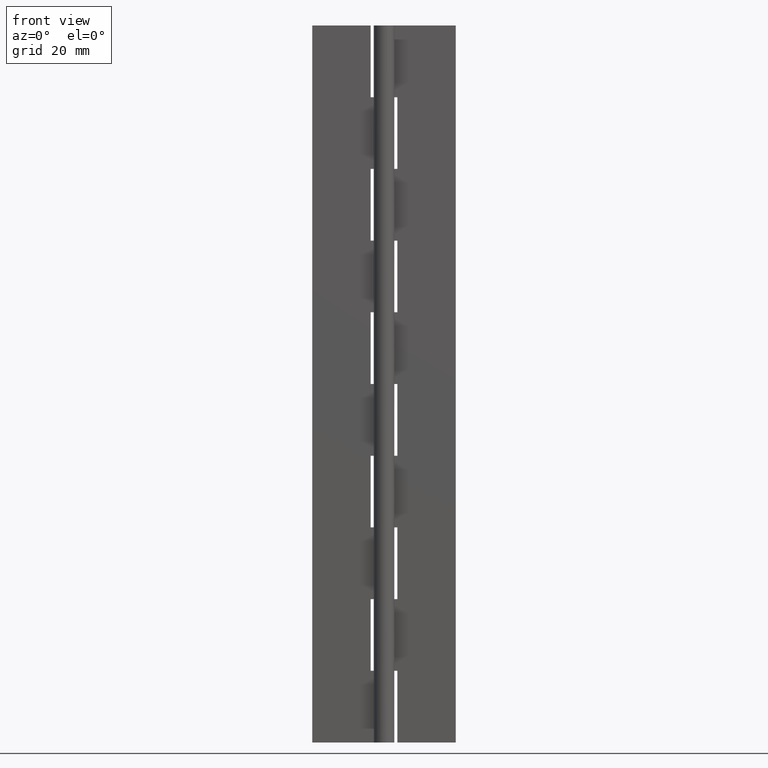
[diagram: clean part render]
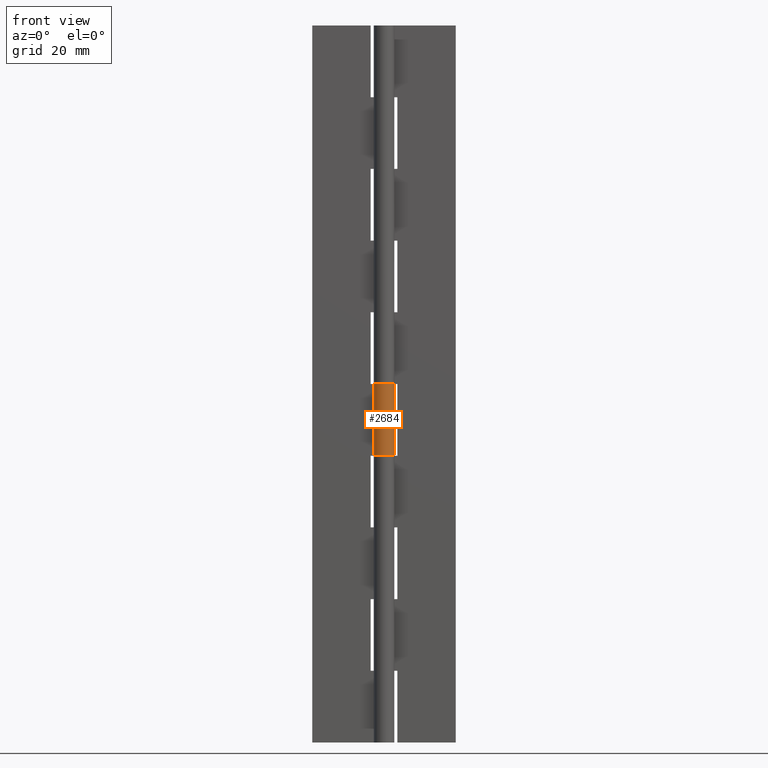
[diagram: same view with one face highlighted and labeled with its STEP entity id]
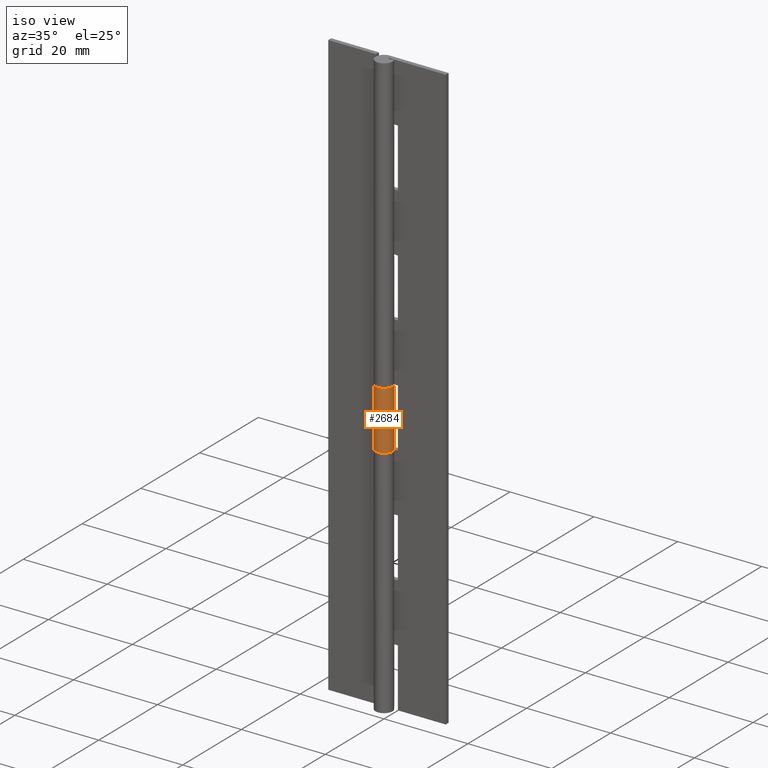
[diagram: same view with one face highlighted and labeled with its STEP entity id]
A machine part, front view. The second image highlights one B-rep face of the part: STEP entity #2684.
A second angle (iso view) of the same face is appended — the face is thin or edge-on in the first view.
In plain terms, the highlighted face is a freeform B-spline surface patch.
Its self-contained STEP definition (entity closure, byte-faithful):
#1878=CARTESIAN_POINT('',(0.0,2.0,70.0));
#1879=VERTEX_POINT('',#1878);
#1920=CARTESIAN_POINT('',(-1.759971590679805,0.950000000000000,70.0));
#1921=VERTEX_POINT('',#1920);
#1927=CARTESIAN_POINT('',(0.0,2.0,70.0));
#1928=CARTESIAN_POINT('',(1.523311426391113,2.000000000000000,69.999999999999986));
#1929=CARTESIAN_POINT('',(1.928096575312494,0.531454227820452,70.0));
#1930=CARTESIAN_POINT('',(2.332881724233873,-0.937091544359094,69.999999999999986));
#1931=CARTESIAN_POINT('',(1.024695076595961,-1.717556403731766,70.0));
#1932=CARTESIAN_POINT('',(-0.283491571041951,-2.498021263104438,69.999999999999986));
#1933=CARTESIAN_POINT('',(-1.383518044628767,-1.444256840103794,70.0));
#1934=CARTESIAN_POINT('',(-2.483544518215582,-0.390492417103149,69.999999999999986));
#1935=CARTESIAN_POINT('',(-1.759971590679806,0.949999999999997,70.0));
#1943=(BOUNDED_CURVE()B_SPLINE_CURVE(2,(#1927,#1928,#1929,#1930,#1931,#1932,#1933,#1934,#1935),.UNSPECIFIED.,.F.,.U.)B_SPLINE_CURVE_WITH_KNOTS((3,2,2,2,3),(0.0,0.250000000000000,0.500000000000000,0.750000000000000,1.0),.UNSPECIFIED.)CURVE()GEOMETRIC_REPRESENTATION_ITEM()RATIONAL_B_SPLINE_CURVE((1.0,0.795527219493534,1.0,0.795527219493534,1.0,0.795527219493534,1.0,0.795527219493534,1.0))REPRESENTATION_ITEM(''));
#1944=EDGE_CURVE('',#1879,#1921,#1943,.T.);
#1974=CARTESIAN_POINT('',(-1.759971590679805,0.950000000000000,56.0));
#1975=VERTEX_POINT('',#1974);
#1976=CARTESIAN_POINT('',(0.0,2.0,56.0));
#1977=VERTEX_POINT('',#1976);
#1978=CARTESIAN_POINT('',(-1.759971590679804,0.950000000000000,56.0));
#1979=CARTESIAN_POINT('',(-2.483544518215584,-0.390492417103144,55.999999999999993));
#1980=CARTESIAN_POINT('',(-1.383518044628769,-1.444256840103792,56.0));
#1981=CARTESIAN_POINT('',(-0.283491571041955,-2.498021263104437,55.999999999999993));
#1982=CARTESIAN_POINT('',(1.024695076595959,-1.717556403731767,56.0));
#1983=CARTESIAN_POINT('',(2.332881724233873,-0.937091544359097,55.999999999999993));
#1984=CARTESIAN_POINT('',(1.928096575312494,0.531454227820451,56.0));
#1985=CARTESIAN_POINT('',(1.523311426391115,2.000000000000000,55.999999999999993));
#1986=CARTESIAN_POINT('',(0.0,2.0,56.0));
#1994=(BOUNDED_CURVE()B_SPLINE_CURVE(2,(#1978,#1979,#1980,#1981,#1982,#1983,#1984,#1985,#1986),.UNSPECIFIED.,.F.,.U.)B_SPLINE_CURVE_WITH_KNOTS((3,2,2,2,3),(0.0,0.250000000000000,0.500000000000000,0.750000000000000,1.0),.UNSPECIFIED.)CURVE()GEOMETRIC_REPRESENTATION_ITEM()RATIONAL_B_SPLINE_CURVE((1.0,0.795527219493534,1.0,0.795527219493534,1.0,0.795527219493534,1.0,0.795527219493534,1.0))REPRESENTATION_ITEM(''));
#1995=EDGE_CURVE('',#1975,#1977,#1994,.T.);
#2611=CARTESIAN_POINT('',(-1.759971590679805,0.950000000000000,70.0));
#2612=CARTESIAN_POINT('',(-1.759971590679805,0.950000000000000,56.0));
#2613=QUASI_UNIFORM_CURVE('',1,(#2611,#2612),.UNSPECIFIED.,.F.,.U.);
#2614=EDGE_CURVE('',#1921,#1975,#2613,.T.);
#2652=CARTESIAN_POINT('',(-1.723258320883051,1.015076725921408,70.349999999999994));
#2653=CARTESIAN_POINT('',(-1.723258320883051,1.015076725921408,55.641249999999992));
#2654=CARTESIAN_POINT('',(-2.969344769301742,-1.100358281051034,70.349999999999994));
#2655=CARTESIAN_POINT('',(-2.969344769301742,-1.100358281051034,55.641249999999992));
#2656=CARTESIAN_POINT('',(-0.645632757753657,-1.892923226682848,70.349999999999994));
#2657=CARTESIAN_POINT('',(-0.645632757753657,-1.892923226682848,55.641249999999992));
#2658=CARTESIAN_POINT('',(1.678079253794428,-2.685488172314661,70.349999999999994));
#2659=CARTESIAN_POINT('',(1.678079253794428,-2.685488172314661,55.641249999999992));
#2660=CARTESIAN_POINT('',(1.984374898665018,-0.249512046899941,70.349999999999994));
#2661=CARTESIAN_POINT('',(1.984374898665018,-0.249512046899941,55.641249999999992));
#2662=CARTESIAN_POINT('',(2.290670543535608,2.186464078514781,70.349999999999994));
#2663=CARTESIAN_POINT('',(2.290670543535608,2.186464078514781,55.641249999999992));
#2664=CARTESIAN_POINT('',(-0.156918191455691,1.993834667466256,70.349999999999994));
#2665=CARTESIAN_POINT('',(-0.156918191455691,1.993834667466256,55.641249999999992));
#2673=(BOUNDED_SURFACE()B_SPLINE_SURFACE(1,2,((#2652,#2654,#2656,#2658,#2660,#2662,#2664),(#2653,#2655,#2657,#2659,#2661,#2663,#2665)),.UNSPECIFIED.,.F.,.F.,.U.)B_SPLINE_SURFACE_WITH_KNOTS((2,2),(3,2,2,3),(0.0,14.708750000000011),(0.0,3.801531476131832,7.603062952263665,11.404594428395500),.UNSPECIFIED.)GEOMETRIC_REPRESENTATION_ITEM()RATIONAL_B_SPLINE_SURFACE(((1.0,0.631578351302498,1.0,0.631578351302498,1.0,0.631578351302498,1.0),(1.0,0.631578351302498,1.0,0.631578351302498,1.0,0.631578351302498,1.0)))REPRESENTATION_ITEM('')SURFACE());
#2674=ORIENTED_EDGE('',*,*,#1944,.T.);
#2675=ORIENTED_EDGE('',*,*,#2614,.T.);
#2676=ORIENTED_EDGE('',*,*,#1995,.T.);
#2677=CARTESIAN_POINT('',(0.0,2.0,70.0));
#2678=CARTESIAN_POINT('',(0.0,2.0,56.0));
#2679=QUASI_UNIFORM_CURVE('',1,(#2677,#2678),.UNSPECIFIED.,.F.,.U.);
#2680=EDGE_CURVE('',#1879,#1977,#2679,.T.);
#2681=ORIENTED_EDGE('',*,*,#2680,.F.);
#2682=EDGE_LOOP('',(#2674,#2675,#2676,#2681));
#2683=FACE_OUTER_BOUND('',#2682,.T.);
#2684=ADVANCED_FACE('',(#2683),#2673,.T.);